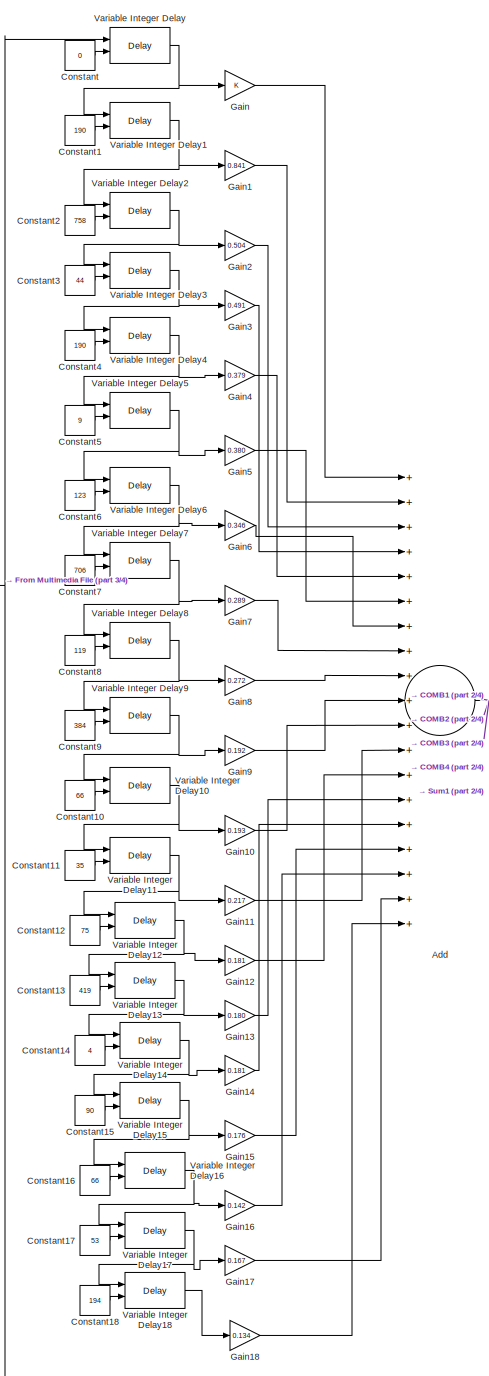
[diagram: root canvas - part 1/4, left side, full height]
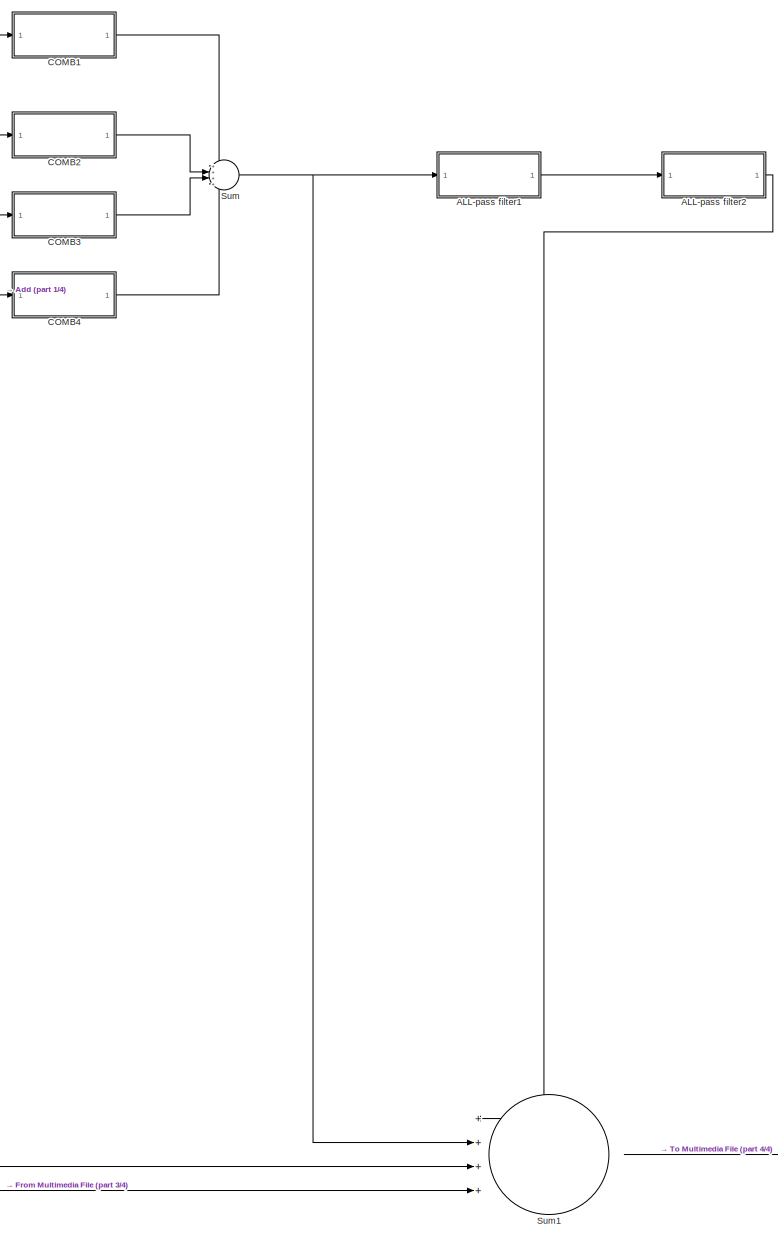
[diagram: root canvas - part 2/4, center side, full height]
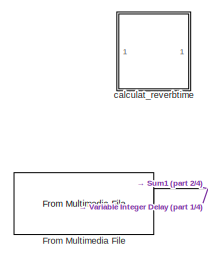
[diagram: root canvas - part 3/4, middle left region]
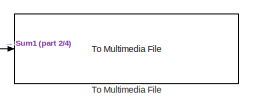
[diagram: root canvas - part 4/4, bottom right region]
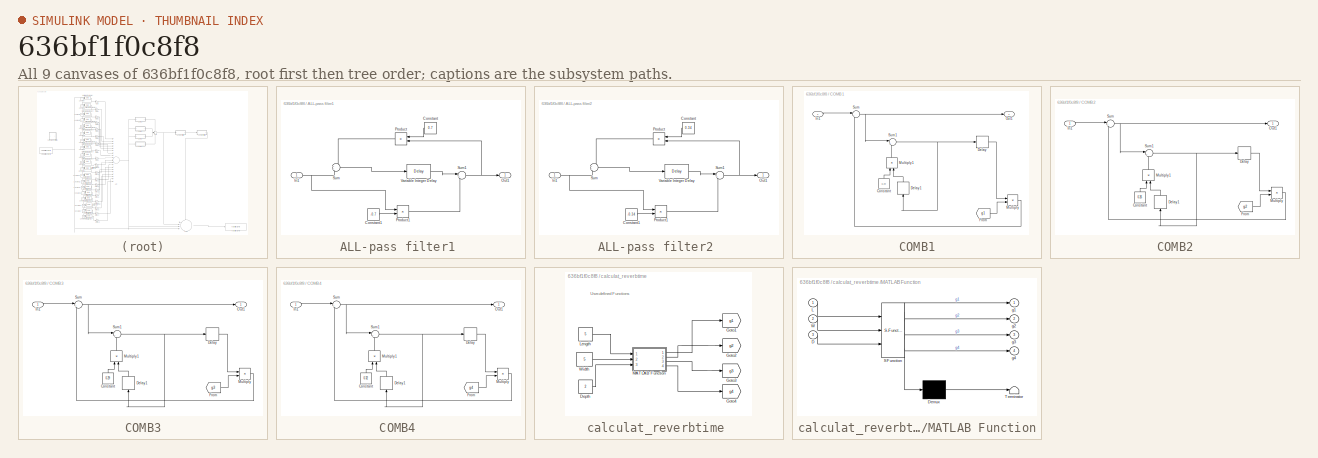
[diagram: thumbnail index - all 9 canvases of the model, root first then tree order]
MODEL slx_636bf1f0c8f8
KIND model
CONFIG AbsTol = auto
CONFIG EnableMultiTasking = off
CONFIG FixedStep = auto
CONFIG MaxStep = auto
CONFIG MinStep = auto
CONFIG RelTol = 1e-3
CONFIG SampleTimeConstraint = Unconstrained
CONFIG Solver = VariableStepAuto
CONFIG SolverName = VariableStepAuto
CONFIG StartTime = 0.0
CONFIG StopTime = 2
BLOCK [SubSystem] ALL-pass filter1 
  Ports = [1, 1]
  RequestExecContextInheritance = off
BLOCK [Constant] ALL-pass filter1 /Constant
  Value = 0.7
BLOCK [Constant] ALL-pass filter1 /Constant1
  Value = -0.7
BLOCK [Inport] ALL-pass filter1 /In1
  IconDisplay = Port number
BLOCK [Outport] ALL-pass filter1 /Out1
  IconDisplay = Port number
BLOCK [Product] ALL-pass filter1 /Product
  InputSameDT = off
  OutDataTypeStr = Inherit: Inherit via internal rule
  Ports = [2, 1]
  RndMeth = Floor
  SaturateOnIntegerOverflow = off
BLOCK [Product] ALL-pass filter1 /Product1
  InputSameDT = off
  OutDataTypeStr = Inherit: Inherit via internal rule
  Ports = [2, 1]
  RndMeth = Floor
  SaturateOnIntegerOverflow = off
BLOCK [Sum] ALL-pass filter1 /Sum
  IconShape = round
  InputSameDT = off
  OutDataTypeStr = Inherit: Inherit via internal rule
  Ports = [2, 1]
  SaturateOnIntegerOverflow = off
BLOCK [Sum] ALL-pass filter1 /Sum1
  IconShape = round
  InputSameDT = off
  Inputs = |++
  OutDataTypeStr = Inherit: Inherit via internal rule
  Ports = [2, 1]
  SaturateOnIntegerOverflow = off
BLOCK [Delay] ALL-pass filter1 /Variable Integer Delay
  DelayLength = 221
  InputPortMap = u0
  Ports = [1, 1]
BLOCK [SubSystem] ALL-pass filter2 
  Ports = [1, 1]
  RequestExecContextInheritance = off
BLOCK [Constant] ALL-pass filter2 /Constant
  Value = 0.34
BLOCK [Constant] ALL-pass filter2 /Constant1
  Value = -0.34
BLOCK [Inport] ALL-pass filter2 /In1
  IconDisplay = Port number
BLOCK [Outport] ALL-pass filter2 /Out1
  IconDisplay = Port number
BLOCK [Product] ALL-pass filter2 /Product
  InputSameDT = off
  OutDataTypeStr = Inherit: Inherit via internal rule
  Ports = [2, 1]
  RndMeth = Floor
  SaturateOnIntegerOverflow = off
BLOCK [Product] ALL-pass filter2 /Product1
  InputSameDT = off
  OutDataTypeStr = Inherit: Inherit via internal rule
  Ports = [2, 1]
  RndMeth = Floor
  SaturateOnIntegerOverflow = off
BLOCK [Sum] ALL-pass filter2 /Sum
  IconShape = round
  InputSameDT = off
  OutDataTypeStr = Inherit: Inherit via internal rule
  Ports = [2, 1]
  SaturateOnIntegerOverflow = off
BLOCK [Sum] ALL-pass filter2 /Sum1
  IconShape = round
  InputSameDT = off
  Inputs = |++
  OutDataTypeStr = Inherit: Inherit via internal rule
  Ports = [2, 1]
  SaturateOnIntegerOverflow = off
BLOCK [Delay] ALL-pass filter2 /Variable Integer Delay
  DelayLength = 75
  InputPortMap = u0
  Ports = [1, 1]
BLOCK [Sum] Add
  InputSameDT = off
  Inputs = +++++++++++++++++++
  OutDataTypeStr = Inherit: Inherit via internal rule
  Ports = [19, 1]
  SaturateOnIntegerOverflow = off
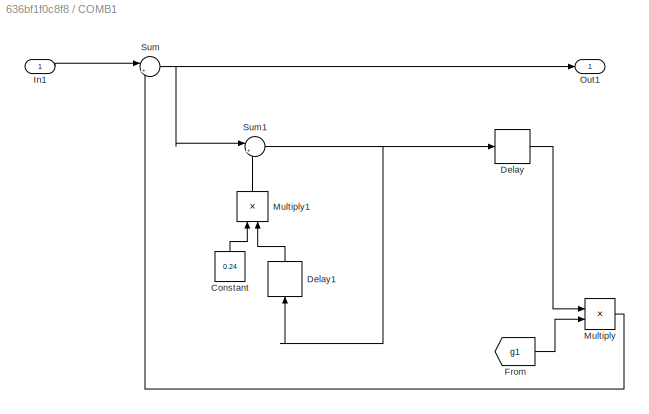
BLOCK [SubSystem] COMB1
  Ports = [1, 1]
  RequestExecContextInheritance = off
BLOCK [Constant] COMB1/Constant
  Value = 0.24
BLOCK [Delay] COMB1/Delay
  DelayLength = 2205
  InitialCondition = 0
  InputPortMap = u0
  Ports = [1, 1]
BLOCK [Delay] COMB1/Delay1
  DelayLength = 1
  InitialCondition = 0
  InputPortMap = u0
  Ports = [1, 1]
BLOCK [From] COMB1/From
  GotoTag = g1
  TagVisibility = global
BLOCK [Inport] COMB1/In1
  IconDisplay = Port number
BLOCK [Product] COMB1/Multiply
  InputSameDT = off
  OutDataTypeStr = Inherit: Inherit via internal rule
  Ports = [2, 1]
  RndMeth = Floor
  SaturateOnIntegerOverflow = off
BLOCK [Product] COMB1/Multiply1
  InputSameDT = off
  OutDataTypeStr = Inherit: Inherit via internal rule
  Ports = [2, 1]
  RndMeth = Floor
  SaturateOnIntegerOverflow = off
BLOCK [Outport] COMB1/Out1
  IconDisplay = Port number
BLOCK [Sum] COMB1/Sum
  IconShape = round
  InputSameDT = off
  Inputs = |++
  OutDataTypeStr = Inherit: Inherit via internal rule
  Ports = [2, 1]
  SaturateOnIntegerOverflow = off
BLOCK [Sum] COMB1/Sum1
  IconShape = round
  InputSameDT = off
  Inputs = |++
  OutDataTypeStr = Inherit: Inherit via internal rule
  Ports = [2, 1]
  SaturateOnIntegerOverflow = off
BLOCK [SubSystem] COMB2
  Ports = [1, 1]
  RequestExecContextInheritance = off
BLOCK [Constant] COMB2/Constant
  Value = 0.26
BLOCK [Delay] COMB2/Delay
  DelayLength = 2467
  InitialCondition = 0
  InputPortMap = u0
  Ports = [1, 1]
BLOCK [Delay] COMB2/Delay1
  DelayLength = 1
  InitialCondition = 0
  InputPortMap = u0
  Ports = [1, 1]
BLOCK [From] COMB2/From
  GotoTag = g2
  TagVisibility = global
BLOCK [Inport] COMB2/In1
  IconDisplay = Port number
BLOCK [Product] COMB2/Multiply
  InputSameDT = off
  OutDataTypeStr = Inherit: Inherit via internal rule
  Ports = [2, 1]
  RndMeth = Floor
  SaturateOnIntegerOverflow = off
BLOCK [Product] COMB2/Multiply1
  InputSameDT = off
  OutDataTypeStr = Inherit: Inherit via internal rule
  Ports = [2, 1]
  RndMeth = Floor
  SaturateOnIntegerOverflow = off
BLOCK [Outport] COMB2/Out1
  IconDisplay = Port number
BLOCK [Sum] COMB2/Sum
  IconShape = round
  InputSameDT = off
  Inputs = |++
  OutDataTypeStr = Inherit: Inherit via internal rule
  Ports = [2, 1]
  SaturateOnIntegerOverflow = off
BLOCK [Sum] COMB2/Sum1
  IconShape = round
  InputSameDT = off
  Inputs = |++
  OutDataTypeStr = Inherit: Inherit via internal rule
  Ports = [2, 1]
  SaturateOnIntegerOverflow = off
BLOCK [SubSystem] COMB3
  Ports = [1, 1]
  RequestExecContextInheritance = off
BLOCK [Constant] COMB3/Constant
  Value = 0.29
BLOCK [Delay] COMB3/Delay
  DelayLength = 2999
  InitialCondition = 0
  InputPortMap = u0
  Ports = [1, 1]
BLOCK [Delay] COMB3/Delay1
  DelayLength = 1
  InitialCondition = 0
  InputPortMap = u0
  Ports = [1, 1]
BLOCK [From] COMB3/From
  GotoTag = g3
  TagVisibility = global
BLOCK [Inport] COMB3/In1
  IconDisplay = Port number
BLOCK [Product] COMB3/Multiply
  InputSameDT = off
  OutDataTypeStr = Inherit: Inherit via internal rule
  Ports = [2, 1]
  RndMeth = Floor
  SaturateOnIntegerOverflow = off
BLOCK [Product] COMB3/Multiply1
  InputSameDT = off
  OutDataTypeStr = Inherit: Inherit via internal rule
  Ports = [2, 1]
  RndMeth = Floor
  SaturateOnIntegerOverflow = off
BLOCK [Outport] COMB3/Out1
  IconDisplay = Port number
BLOCK [Sum] COMB3/Sum
  IconShape = round
  InputSameDT = off
  Inputs = |++
  OutDataTypeStr = Inherit: Inherit via internal rule
  Ports = [2, 1]
  SaturateOnIntegerOverflow = off
BLOCK [Sum] COMB3/Sum1
  IconShape = round
  InputSameDT = off
  Inputs = |++
  OutDataTypeStr = Inherit: Inherit via internal rule
  Ports = [2, 1]
  SaturateOnIntegerOverflow = off
BLOCK [SubSystem] COMB4 
  Ports = [1, 1]
  RequestExecContextInheritance = off
BLOCK [Constant] COMB4 /Constant
  Value = 0.32
BLOCK [Delay] COMB4 /Delay
  DelayLength = 3440
  InitialCondition = 0
  InputPortMap = u0
  Ports = [1, 1]
BLOCK [Delay] COMB4 /Delay1
  DelayLength = 1
  InitialCondition = 0
  InputPortMap = u0
  Ports = [1, 1]
BLOCK [From] COMB4 /From
  GotoTag = g4
  TagVisibility = global
BLOCK [Inport] COMB4 /In1
  IconDisplay = Port number
BLOCK [Product] COMB4 /Multiply
  InputSameDT = off
  OutDataTypeStr = Inherit: Inherit via internal rule
  Ports = [2, 1]
  RndMeth = Floor
  SaturateOnIntegerOverflow = off
BLOCK [Product] COMB4 /Multiply1
  InputSameDT = off
  OutDataTypeStr = Inherit: Inherit via internal rule
  Ports = [2, 1]
  RndMeth = Floor
  SaturateOnIntegerOverflow = off
BLOCK [Outport] COMB4 /Out1
  IconDisplay = Port number
BLOCK [Sum] COMB4 /Sum
  IconShape = round
  InputSameDT = off
  Inputs = |++
  OutDataTypeStr = Inherit: Inherit via internal rule
  Ports = [2, 1]
  SaturateOnIntegerOverflow = off
BLOCK [Sum] COMB4 /Sum1
  IconShape = round
  InputSameDT = off
  Inputs = |++
  OutDataTypeStr = Inherit: Inherit via internal rule
  Ports = [2, 1]
  SaturateOnIntegerOverflow = off
BLOCK [Constant] Constant
  Value = 0
BLOCK [Constant] Constant1
  Value = 190
BLOCK [Constant] Constant10
  Value = 66
BLOCK [Constant] Constant11
  Value = 35
BLOCK [Constant] Constant12
  Value = 75
BLOCK [Constant] Constant13
  Value = 419
BLOCK [Constant] Constant14
  Value = 4
BLOCK [Constant] Constant15
  Value = 90
BLOCK [Constant] Constant16
  Value = 66
BLOCK [Constant] Constant17
  Value = 53
BLOCK [Constant] Constant18
  Value = 194
BLOCK [Constant] Constant2
  Value = 758
BLOCK [Constant] Constant3
  Value = 44
BLOCK [Constant] Constant4
  Value = 190
BLOCK [Constant] Constant5
  Value = 9
BLOCK [Constant] Constant6
  Value = 123
BLOCK [Constant] Constant7
  Value = 706
BLOCK [Constant] Constant8
  Value = 119
BLOCK [Constant] Constant9
  Value = 384
BLOCK [Reference] From Multimedia File  REF=dspvision/From Multimedia File
  Ports = [0, 1]
  SourceBlock = dspvision/From Multimedia File
  SourceProductBaseCode = VP
  SourceProductName = Computer Vision System Toolbox
  SourceType = From Multimedia File
BLOCK [Gain] Gain
  OutDataTypeStr = Inherit: Inherit via internal rule
  ParamDataTypeStr = Inherit: Inherit via internal rule
  SaturateOnIntegerOverflow = off
BLOCK [Gain] Gain1
  Gain = 0.841
  OutDataTypeStr = Inherit: Inherit via internal rule
  ParamDataTypeStr = Inherit: Inherit via internal rule
  SaturateOnIntegerOverflow = off
BLOCK [Gain] Gain10
  Gain = 0.193
  OutDataTypeStr = Inherit: Inherit via internal rule
  ParamDataTypeStr = Inherit: Inherit via internal rule
  SaturateOnIntegerOverflow = off
BLOCK [Gain] Gain11
  Gain = 0.217
  OutDataTypeStr = Inherit: Inherit via internal rule
  ParamDataTypeStr = Inherit: Inherit via internal rule
  SaturateOnIntegerOverflow = off
BLOCK [Gain] Gain12
  Gain = 0.181
  OutDataTypeStr = Inherit: Inherit via internal rule
  ParamDataTypeStr = Inherit: Inherit via internal rule
  SaturateOnIntegerOverflow = off
BLOCK [Gain] Gain13
  Gain = 0.180
  OutDataTypeStr = Inherit: Inherit via internal rule
  ParamDataTypeStr = Inherit: Inherit via internal rule
  SaturateOnIntegerOverflow = off
BLOCK [Gain] Gain14
  Gain = 0.181
  OutDataTypeStr = Inherit: Inherit via internal rule
  ParamDataTypeStr = Inherit: Inherit via internal rule
  SaturateOnIntegerOverflow = off
BLOCK [Gain] Gain15
  Gain = 0.176
  OutDataTypeStr = Inherit: Inherit via internal rule
  ParamDataTypeStr = Inherit: Inherit via internal rule
  SaturateOnIntegerOverflow = off
BLOCK [Gain] Gain16
  Gain = 0.142
  OutDataTypeStr = Inherit: Inherit via internal rule
  ParamDataTypeStr = Inherit: Inherit via internal rule
  SaturateOnIntegerOverflow = off
BLOCK [Gain] Gain17
  Gain = 0.167
  OutDataTypeStr = Inherit: Inherit via internal rule
  ParamDataTypeStr = Inherit: Inherit via internal rule
  SaturateOnIntegerOverflow = off
BLOCK [Gain] Gain18
  Gain = 0.134
  OutDataTypeStr = Inherit: Inherit via internal rule
  ParamDataTypeStr = Inherit: Inherit via internal rule
  SaturateOnIntegerOverflow = off
BLOCK [Gain] Gain2
  Gain = 0.504
  OutDataTypeStr = Inherit: Inherit via internal rule
  ParamDataTypeStr = Inherit: Inherit via internal rule
  SaturateOnIntegerOverflow = off
BLOCK [Gain] Gain3
  Gain = 0.491
  OutDataTypeStr = Inherit: Inherit via internal rule
  ParamDataTypeStr = Inherit: Inherit via internal rule
  SaturateOnIntegerOverflow = off
BLOCK [Gain] Gain4
  Gain = 0.379
  OutDataTypeStr = Inherit: Inherit via internal rule
  ParamDataTypeStr = Inherit: Inherit via internal rule
  SaturateOnIntegerOverflow = off
BLOCK [Gain] Gain5
  Gain = 0.380
  OutDataTypeStr = Inherit: Inherit via internal rule
  ParamDataTypeStr = Inherit: Inherit via internal rule
  SaturateOnIntegerOverflow = off
BLOCK [Gain] Gain6
  Gain = 0.346
  OutDataTypeStr = Inherit: Inherit via internal rule
  ParamDataTypeStr = Inherit: Inherit via internal rule
  SaturateOnIntegerOverflow = off
BLOCK [Gain] Gain7
  Gain = 0.289
  OutDataTypeStr = Inherit: Inherit via internal rule
  ParamDataTypeStr = Inherit: Inherit via internal rule
  SaturateOnIntegerOverflow = off
BLOCK [Gain] Gain8
  Gain = 0.272
  OutDataTypeStr = Inherit: Inherit via internal rule
  ParamDataTypeStr = Inherit: Inherit via internal rule
  SaturateOnIntegerOverflow = off
BLOCK [Gain] Gain9
  Gain = 0.192
  OutDataTypeStr = Inherit: Inherit via internal rule
  ParamDataTypeStr = Inherit: Inherit via internal rule
  SaturateOnIntegerOverflow = off
BLOCK [Sum] Sum
  IconShape = round
  InputSameDT = off
  Inputs = ++++
  OutDataTypeStr = Inherit: Inherit via internal rule
  Ports = [4, 1]
  SaturateOnIntegerOverflow = off
BLOCK [Sum] Sum1
  IconShape = round
  InputSameDT = off
  Inputs = ++++
  OutDataTypeStr = Inherit: Inherit via internal rule
  Ports = [4, 1]
  SaturateOnIntegerOverflow = off
BLOCK [Reference] To Multimedia File  REF=dspvision/To Multimedia File
  Ports = [1]
  SourceBlock = dspvision/To Multimedia File
  SourceProductBaseCode = VP
  SourceProductName = Computer Vision System Toolbox
  SourceType = To Multimedia File
BLOCK [Delay] Variable Integer Delay
  DelayLength = 0
  DelayLengthSource = Input port
  InputPortMap = u0,p1
  Ports = [2, 1]
BLOCK [Delay] Variable Integer Delay1
  DelayLength = 0
  DelayLengthSource = Input port
  InputPortMap = u0,p1
  Ports = [2, 1]
BLOCK [Delay] Variable Integer Delay10
  DelayLength = 0
  DelayLengthSource = Input port
  InputPortMap = u0,p1
  Ports = [2, 1]
BLOCK [Delay] Variable Integer Delay11
  DelayLength = 0
  DelayLengthSource = Input port
  InputPortMap = u0,p1
  Ports = [2, 1]
BLOCK [Delay] Variable Integer Delay12
  DelayLength = 0
  DelayLengthSource = Input port
  InputPortMap = u0,p1
  Ports = [2, 1]
BLOCK [Delay] Variable Integer Delay13
  DelayLength = 0
  DelayLengthSource = Input port
  InputPortMap = u0,p1
  Ports = [2, 1]
BLOCK [Delay] Variable Integer Delay14
  DelayLength = 0
  DelayLengthSource = Input port
  InputPortMap = u0,p1
  Ports = [2, 1]
BLOCK [Delay] Variable Integer Delay15
  DelayLength = 0
  DelayLengthSource = Input port
  InputPortMap = u0,p1
  Ports = [2, 1]
BLOCK [Delay] Variable Integer Delay16
  DelayLength = 0
  DelayLengthSource = Input port
  InputPortMap = u0,p1
  Ports = [2, 1]
BLOCK [Delay] Variable Integer Delay17
  DelayLength = 0
  DelayLengthSource = Input port
  InputPortMap = u0,p1
  Ports = [2, 1]
BLOCK [Delay] Variable Integer Delay18
  DelayLength = 0
  DelayLengthSource = Input port
  InputPortMap = u0,p1
  Ports = [2, 1]
BLOCK [Delay] Variable Integer Delay2
  DelayLength = 0
  DelayLengthSource = Input port
  InputPortMap = u0,p1
  Ports = [2, 1]
BLOCK [Delay] Variable Integer Delay3
  DelayLength = 0
  DelayLengthSource = Input port
  InputPortMap = u0,p1
  Ports = [2, 1]
BLOCK [Delay] Variable Integer Delay4
  DelayLength = 0
  DelayLengthSource = Input port
  InputPortMap = u0,p1
  Ports = [2, 1]
BLOCK [Delay] Variable Integer Delay5
  DelayLength = 0
  DelayLengthSource = Input port
  InputPortMap = u0,p1
  Ports = [2, 1]
BLOCK [Delay] Variable Integer Delay6
  DelayLength = 0
  DelayLengthSource = Input port
  InputPortMap = u0,p1
  Ports = [2, 1]
BLOCK [Delay] Variable Integer Delay7
  DelayLength = 0
  DelayLengthSource = Input port
  InputPortMap = u0,p1
  Ports = [2, 1]
BLOCK [Delay] Variable Integer Delay8
  DelayLength = 0
  DelayLengthSource = Input port
  InputPortMap = u0,p1
  Ports = [2, 1]
BLOCK [Delay] Variable Integer Delay9
  DelayLength = 0
  DelayLengthSource = Input port
  InputPortMap = u0,p1
  Ports = [2, 1]
BLOCK [SubSystem] calculat_reverbtime 
  Ports = []
  RequestExecContextInheritance = off
BLOCK [Constant] calculat_reverbtime /Depth
  Value = 2
BLOCK [Goto] calculat_reverbtime /Goto1
  GotoTag = g1
  TagVisibility = global
BLOCK [Goto] calculat_reverbtime /Goto2
  GotoTag = g2
  TagVisibility = global
BLOCK [Goto] calculat_reverbtime /Goto3
  GotoTag = g3
  TagVisibility = global
BLOCK [Goto] calculat_reverbtime /Goto4
  GotoTag = g4
  TagVisibility = global
BLOCK [Constant] calculat_reverbtime /Length
  Value = 5
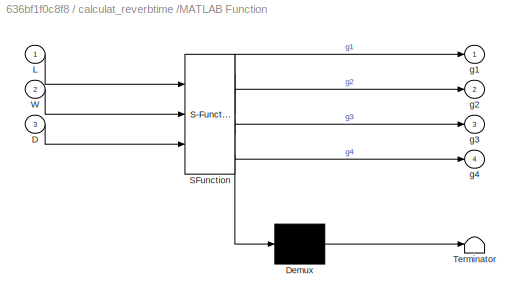
BLOCK [SubSystem] calculat_reverbtime /MATLAB Function
  ErrorFcn = Stateflow.Translate.translate
  PermitHierarchicalResolution = ExplicitOnly
  Ports = [3, 4]
  RequestExecContextInheritance = off
  SFBlockType = MATLAB Function
  TreatAsAtomicUnit = on
BLOCK [Demux] calculat_reverbtime /MATLAB Function/ Demux 
  Outputs = 1
  Ports = [1, 1]
BLOCK [S-Function] calculat_reverbtime /MATLAB Function/ SFunction 
  EnableBusSupport = on
  FunctionName = sf_sfun
  PortCounts = [3 5]
  Ports = [3, 5]
  SFcnIsStateOwnerBlock = off
  SFunctionDeploymentMode = off
  Tag = Stateflow S-Function lab_roomreverbsimulation 2
BLOCK [Terminator] calculat_reverbtime /MATLAB Function/ Terminator 
BLOCK [Inport] calculat_reverbtime /MATLAB Function/D
  IconDisplay = Port number
  Port = 3
BLOCK [Inport] calculat_reverbtime /MATLAB Function/L
  IconDisplay = Port number
BLOCK [Inport] calculat_reverbtime /MATLAB Function/W
  IconDisplay = Port number
  Port = 2
BLOCK [Outport] calculat_reverbtime /MATLAB Function/g1
  IconDisplay = Port number
BLOCK [Outport] calculat_reverbtime /MATLAB Function/g2
  IconDisplay = Port number
  Port = 2
BLOCK [Outport] calculat_reverbtime /MATLAB Function/g3
  IconDisplay = Port number
  Port = 3
BLOCK [Outport] calculat_reverbtime /MATLAB Function/g4
  IconDisplay = Port number
  Port = 4
BLOCK [Constant] calculat_reverbtime /Width
  Value = 5
ANNOTATION calculat_reverbtime : User-defined Functions
LINE ALL-pass filter1 /Constant1:1 -> ALL-pass filter1 /Product1:2
LINE ALL-pass filter1 /Constant:1 -> ALL-pass filter1 /Product:1
NET ALL-pass filter1 /In1:1 -> ALL-pass filter1 /Product1:1, ALL-pass filter1 /Sum:2
LINE ALL-pass filter1 /Product1:1 -> ALL-pass filter1 /Sum1:2
LINE ALL-pass filter1 /Product:1 -> ALL-pass filter1 /Sum:1
NET ALL-pass filter1 /Sum1:1 -> ALL-pass filter1 /Out1:1, ALL-pass filter1 /Product:2
LINE ALL-pass filter1 /Sum:1 -> ALL-pass filter1 /Variable Integer Delay:1
LINE ALL-pass filter1 /Variable Integer Delay:1 -> ALL-pass filter1 /Sum1:1
LINE ALL-pass filter1 :1 -> ALL-pass filter2 :1
LINE ALL-pass filter2 /Constant1:1 -> ALL-pass filter2 /Product1:2
LINE ALL-pass filter2 /Constant:1 -> ALL-pass filter2 /Product:1
NET ALL-pass filter2 /In1:1 -> ALL-pass filter2 /Product1:1, ALL-pass filter2 /Sum:2
LINE ALL-pass filter2 /Product1:1 -> ALL-pass filter2 /Sum1:2
LINE ALL-pass filter2 /Product:1 -> ALL-pass filter2 /Sum:1
NET ALL-pass filter2 /Sum1:1 -> ALL-pass filter2 /Out1:1, ALL-pass filter2 /Product:2
LINE ALL-pass filter2 /Sum:1 -> ALL-pass filter2 /Variable Integer Delay:1
LINE ALL-pass filter2 /Variable Integer Delay:1 -> ALL-pass filter2 /Sum1:1
LINE ALL-pass filter2 :1 -> Sum1:1
NET Add:1 -> COMB1:1, COMB2:1, COMB3:1, COMB4 :1, Sum1:3
LINE COMB1/Constant:1 -> COMB1/Multiply1:1
LINE COMB1/Delay1:1 -> COMB1/Multiply1:2
LINE COMB1/Delay:1 -> COMB1/Multiply:1
LINE COMB1/From:1 -> COMB1/Multiply:2
LINE COMB1/In1:1 -> COMB1/Sum:1
LINE COMB1/Multiply1:1 -> COMB1/Sum1:2
LINE COMB1/Multiply:1 -> COMB1/Sum:2
NET COMB1/Sum1:1 -> COMB1/Delay1:1, COMB1/Delay:1
NET COMB1/Sum:1 -> COMB1/Out1:1, COMB1/Sum1:1
LINE COMB1:1 -> Sum:1
LINE COMB2/Constant:1 -> COMB2/Multiply1:1
LINE COMB2/Delay1:1 -> COMB2/Multiply1:2
LINE COMB2/Delay:1 -> COMB2/Multiply:1
LINE COMB2/From:1 -> COMB2/Multiply:2
LINE COMB2/In1:1 -> COMB2/Sum:1
LINE COMB2/Multiply1:1 -> COMB2/Sum1:2
LINE COMB2/Multiply:1 -> COMB2/Sum:2
NET COMB2/Sum1:1 -> COMB2/Delay1:1, COMB2/Delay:1
NET COMB2/Sum:1 -> COMB2/Out1:1, COMB2/Sum1:1
LINE COMB2:1 -> Sum:2
LINE COMB3/Constant:1 -> COMB3/Multiply1:1
LINE COMB3/Delay1:1 -> COMB3/Multiply1:2
LINE COMB3/Delay:1 -> COMB3/Multiply:1
LINE COMB3/From:1 -> COMB3/Multiply:2
LINE COMB3/In1:1 -> COMB3/Sum:1
LINE COMB3/Multiply1:1 -> COMB3/Sum1:2
LINE COMB3/Multiply:1 -> COMB3/Sum:2
NET COMB3/Sum1:1 -> COMB3/Delay1:1, COMB3/Delay:1
NET COMB3/Sum:1 -> COMB3/Out1:1, COMB3/Sum1:1
LINE COMB3:1 -> Sum:3
LINE COMB4 /Constant:1 -> COMB4 /Multiply1:1
LINE COMB4 /Delay1:1 -> COMB4 /Multiply1:2
LINE COMB4 /Delay:1 -> COMB4 /Multiply:1
LINE COMB4 /From:1 -> COMB4 /Multiply:2
LINE COMB4 /In1:1 -> COMB4 /Sum:1
LINE COMB4 /Multiply1:1 -> COMB4 /Sum1:2
LINE COMB4 /Multiply:1 -> COMB4 /Sum:2
NET COMB4 /Sum1:1 -> COMB4 /Delay1:1, COMB4 /Delay:1
NET COMB4 /Sum:1 -> COMB4 /Out1:1, COMB4 /Sum1:1
LINE COMB4 :1 -> Sum:4
LINE Constant10:1 -> Variable Integer Delay10:2
LINE Constant11:1 -> Variable Integer Delay11:2
LINE Constant12:1 -> Variable Integer Delay12:2
LINE Constant13:1 -> Variable Integer Delay13:2
LINE Constant14:1 -> Variable Integer Delay14:2
LINE Constant15:1 -> Variable Integer Delay15:2
LINE Constant16:1 -> Variable Integer Delay16:2
LINE Constant17:1 -> Variable Integer Delay17:2
LINE Constant18:1 -> Variable Integer Delay18:2
LINE Constant1:1 -> Variable Integer Delay1:2
LINE Constant2:1 -> Variable Integer Delay2:2
LINE Constant3:1 -> Variable Integer Delay3:2
LINE Constant4:1 -> Variable Integer Delay4:2
LINE Constant5:1 -> Variable Integer Delay5:2
LINE Constant6:1 -> Variable Integer Delay6:2
LINE Constant7:1 -> Variable Integer Delay7:2
LINE Constant8:1 -> Variable Integer Delay8:2
LINE Constant9:1 -> Variable Integer Delay9:2
LINE Constant:1 -> Variable Integer Delay:2
NET From Multimedia File:1 -> Sum1:4, Variable Integer Delay:1
LINE Gain10:1 -> Add:11
LINE Gain11:1 -> Add:12
LINE Gain12:1 -> Add:13
LINE Gain13:1 -> Add:14
LINE Gain14:1 -> Add:15
LINE Gain15:1 -> Add:16
LINE Gain16:1 -> Add:17
LINE Gain17:1 -> Add:18
LINE Gain18:1 -> Add:19
LINE Gain1:1 -> Add:2
LINE Gain2:1 -> Add:3
LINE Gain3:1 -> Add:4
LINE Gain4:1 -> Add:5
LINE Gain5:1 -> Add:6
LINE Gain6:1 -> Add:7
LINE Gain7:1 -> Add:8
LINE Gain8:1 -> Add:9
LINE Gain9:1 -> Add:10
LINE Gain:1 -> Add:1
LINE Sum1:1 -> To Multimedia File:1
NET Sum:1 -> ALL-pass filter1 :1, Sum1:2
NET Variable Integer Delay10:1 -> Gain10:1, Variable Integer Delay11:1
NET Variable Integer Delay11:1 -> Gain11:1, Variable Integer Delay12:1
NET Variable Integer Delay12:1 -> Gain12:1, Variable Integer Delay13:1
NET Variable Integer Delay13:1 -> Gain13:1, Variable Integer Delay14:1
NET Variable Integer Delay14:1 -> Gain14:1, Variable Integer Delay15:1
NET Variable Integer Delay15:1 -> Gain15:1, Variable Integer Delay16:1
NET Variable Integer Delay16:1 -> Gain16:1, Variable Integer Delay17:1
NET Variable Integer Delay17:1 -> Gain17:1, Variable Integer Delay18:1
LINE Variable Integer Delay18:1 -> Gain18:1
NET Variable Integer Delay1:1 -> Gain1:1, Variable Integer Delay2:1
NET Variable Integer Delay2:1 -> Gain2:1, Variable Integer Delay3:1
NET Variable Integer Delay3:1 -> Gain3:1, Variable Integer Delay4:1
NET Variable Integer Delay4:1 -> Gain4:1, Variable Integer Delay5:1
NET Variable Integer Delay5:1 -> Gain5:1, Variable Integer Delay6:1
NET Variable Integer Delay6:1 -> Gain6:1, Variable Integer Delay7:1
NET Variable Integer Delay7:1 -> Gain7:1, Variable Integer Delay8:1
NET Variable Integer Delay8:1 -> Gain8:1, Variable Integer Delay9:1
NET Variable Integer Delay9:1 -> Gain9:1, Variable Integer Delay10:1
NET Variable Integer Delay:1 -> Gain:1, Variable Integer Delay1:1
note: NET lines group one-source signal fan-out (src -> all destinations, sorted); 1:1 wires keep LINE
CHART calculat_reverbtime
/MATLAB Function states=1 transitions=1
  STATE_LABEL 'eML_blk_kernel()'
  STATE_LABEL 'SCRIPT:\nfunction [g1,g2,g3,g4]= reverbtime(L,W,D)\n%generate the parameters in relevence of reverb time\n%L:length W:width D:depth\n%calculate T_60: reverb time,based on Sabine eqation\nv=L*W*D;\ns=L*W*2+L*D*2+W*D*2;\nT_60 = (0.16*v)/(0.1*s);\n\n%generate a: attenuation coefficent for lp filter\na=[0.24 0.26 0.29 0.32]\n\n%calculate g:feedback coeficent,based on Moorer model\ng1=(1-0.366/T_60)*(1-a(1,1));\ng2=...<+89ch>'
